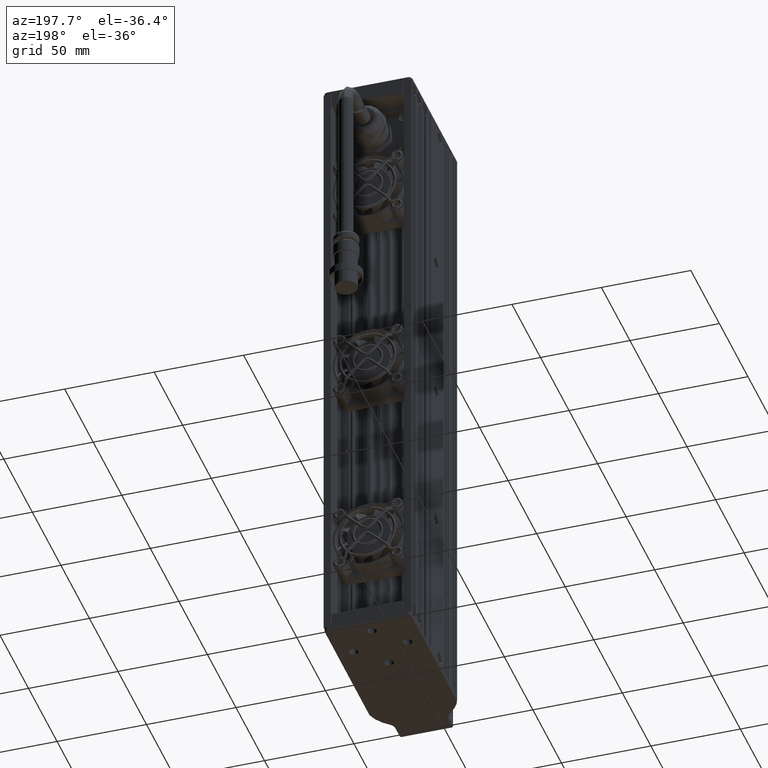
[diagram: clean part render]
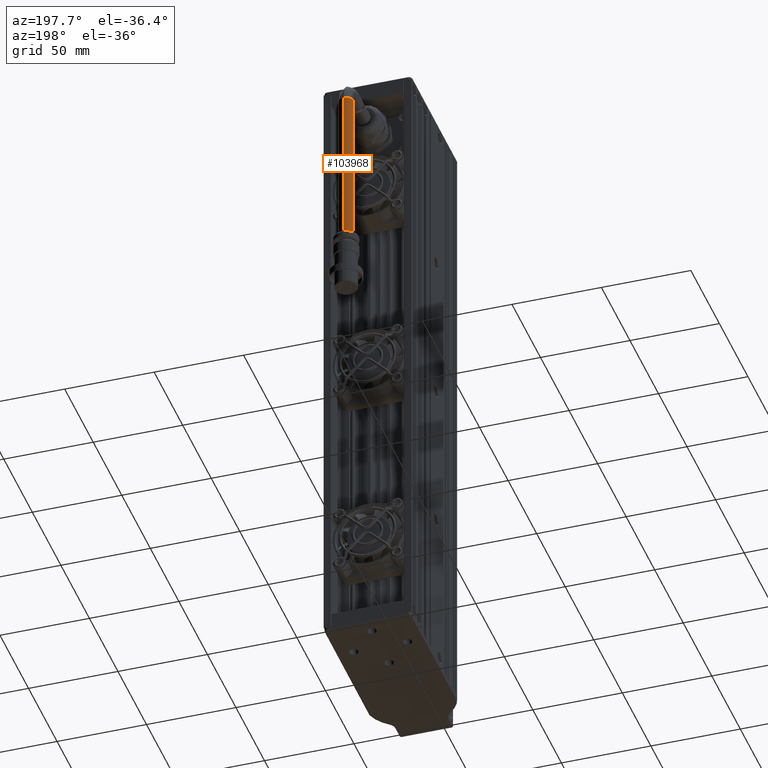
[diagram: same view with one face highlighted and labeled with its STEP entity id]
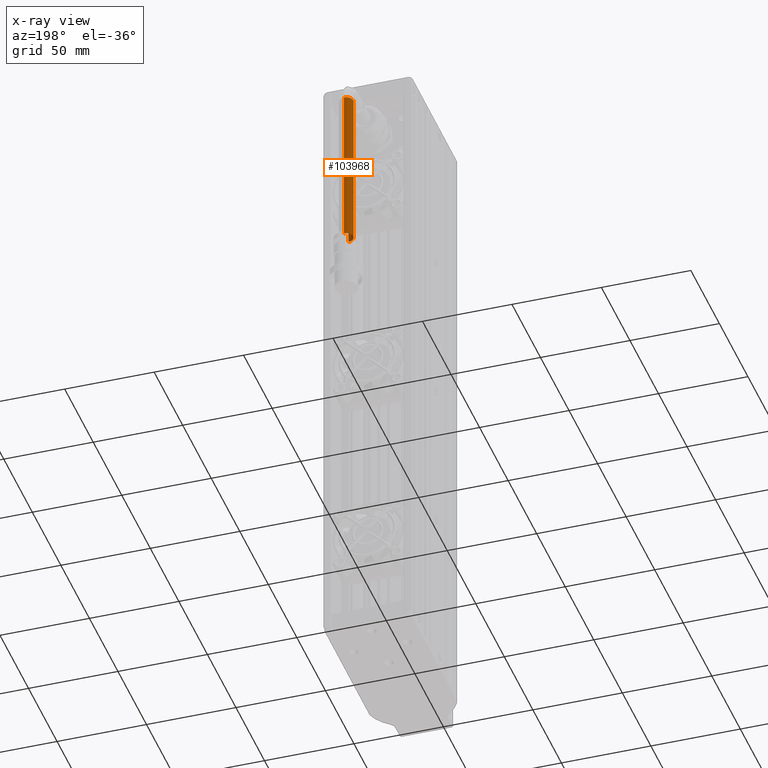
[diagram: x-ray of the same camera — body ghosted, the highlighted face saturated]
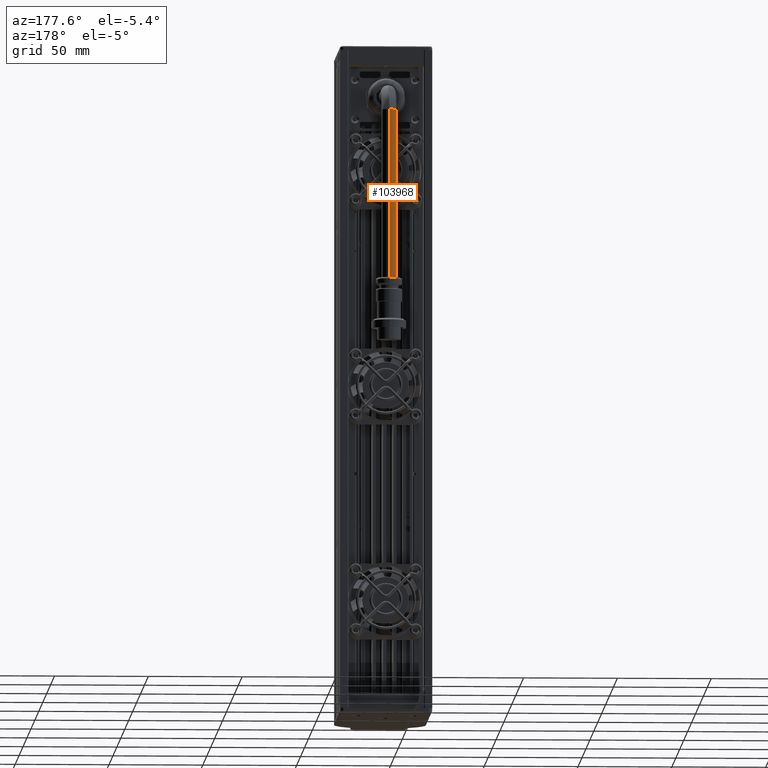
[diagram: same view with one face highlighted and labeled with its STEP entity id]
A machine part, auxiliary view. The second image highlights one B-rep face of the part: STEP entity #103968.
The next image is the same camera in x-ray: the body ghosted, the highlighted face saturated — about 0% of this face is hidden behind the body in this view.
A second angle (auxiliary view) of the same face is appended — the face is thin or edge-on in the first view.
In plain terms, the highlighted cylindrical surface (edge-blend (fillet) strip) has radius 4 mm, axis along (0, 0, -1).
Its self-contained STEP definition (entity closure, byte-faithful):
#6130 = CARTESIAN_POINT ( 'NONE',  ( -37.41201180637546700, 81.00452420306965000, 140.4999999999995200 ) ) ;
#7825 = EDGE_CURVE ( 'NONE', #90796, #106553, #80272, .T. ) ;
#11432 = EDGE_CURVE ( 'NONE', #90796, #47210, #110545, .T. ) ;
#11581 = CARTESIAN_POINT ( 'NONE',  ( -37.41201180637546000, 81.00452420306970700, 50.49999999999993600 ) ) ;
#14904 = DIRECTION ( 'NONE',  ( 0.0000000000000000000, -1.000000000000000000, 0.0000000000000000000 ) ) ;
#26069 = CARTESIAN_POINT ( 'NONE',  ( -37.41201180637546700, 81.00452420306965000, 140.4999999999995200 ) ) ;
#27440 = CIRCLE ( 'NONE', #92273, 4.000000000000003600 ) ;
#29076 = ORIENTED_EDGE ( 'NONE', *, *, #11432, .F. ) ;
#32354 = DIRECTION ( 'NONE',  ( 5.465066662599928600E-017, 5.385191463057609100E-016, -1.000000000000000000 ) ) ;
#33385 = CARTESIAN_POINT ( 'NONE',  ( -37.41201180637546000, 77.00452420306970700, 50.49999999999993600 ) ) ;
#36407 = FACE_OUTER_BOUND ( 'NONE', #95657, .T. ) ;
#42800 = DIRECTION ( 'NONE',  ( 0.0000000000000000000, -1.000000000000000000, 0.0000000000000000000 ) ) ;
#44673 = DIRECTION ( 'NONE',  ( 5.465066662599928600E-017, 5.385191463057609100E-016, -1.000000000000000000 ) ) ;
#45581 = CARTESIAN_POINT ( 'NONE',  ( -37.41201180637546000, 85.00452420306970700, 50.49999999999993600 ) ) ;
#47210 = VERTEX_POINT ( 'NONE', #33385 ) ;
#53534 = EDGE_CURVE ( 'NONE', #106553, #106607, #74974, .T. ) ;
#54118 = AXIS2_PLACEMENT_3D ( 'NONE', #6130, #32354, #14904 ) ;
#62959 = ORIENTED_EDGE ( 'NONE', *, *, #53534, .T. ) ;
#65437 = AXIS2_PLACEMENT_3D ( 'NONE', #26069, #85478, #42800 ) ;
#67690 = ORIENTED_EDGE ( 'NONE', *, *, #7825, .T. ) ;
#74974 = LINE ( 'NONE', #110994, #91363 ) ;
#80272 = CIRCLE ( 'NONE', #65437, 4.000000000000003600 ) ;
#81219 = DIRECTION ( 'NONE',  ( 0.0000000000000000000, -1.000000000000000000, 0.0000000000000000000 ) ) ;
#85478 = DIRECTION ( 'NONE',  ( 5.465066662599928600E-017, 5.385191463057609100E-016, -1.000000000000000000 ) ) ;
#89857 = ORIENTED_EDGE ( 'NONE', *, *, #105849, .T. ) ;
#90796 = VERTEX_POINT ( 'NONE', #102624 ) ;
#91363 = VECTOR ( 'NONE', #93160, 1000.000000000000000 ) ;
#92273 = AXIS2_PLACEMENT_3D ( 'NONE', #11581, #100921, #81219 ) ;
#93160 = DIRECTION ( 'NONE',  ( 5.465066662599928600E-017, 5.385191463057609100E-016, -1.000000000000000000 ) ) ;
#93647 = CYLINDRICAL_SURFACE ( 'NONE', #54118, 4.000000000000003600 ) ;
#95657 = EDGE_LOOP ( 'NONE', ( #67690, #62959, #89857, #29076 ) ) ;
#96918 = CARTESIAN_POINT ( 'NONE',  ( -37.41201180637552400, 85.00452420306966400, 140.4999999999995200 ) ) ;
#98297 = VECTOR ( 'NONE', #44673, 1000.000000000000000 ) ;
#100921 = DIRECTION ( 'NONE',  ( -5.465066662599928600E-017, -5.385191463057609100E-016, 1.000000000000000000 ) ) ;
#102624 = CARTESIAN_POINT ( 'NONE',  ( -37.41201180637551700, 77.00452420306965000, 140.4999999999995200 ) ) ;
#103968 = ADVANCED_FACE ( 'NONE', ( #36407 ), #93647, .T. ) ;
#105849 = EDGE_CURVE ( 'NONE', #106607, #47210, #27440, .T. ) ;
#106264 = CARTESIAN_POINT ( 'NONE',  ( -37.41201180637546700, 77.00452420306965000, 140.4999999999995200 ) ) ;
#106553 = VERTEX_POINT ( 'NONE', #96918 ) ;
#106607 = VERTEX_POINT ( 'NONE', #45581 ) ;
#110545 = LINE ( 'NONE', #106264, #98297 ) ;
#110994 = CARTESIAN_POINT ( 'NONE',  ( -37.41201180637546700, 85.00452420306965000, 140.4999999999995200 ) ) ;